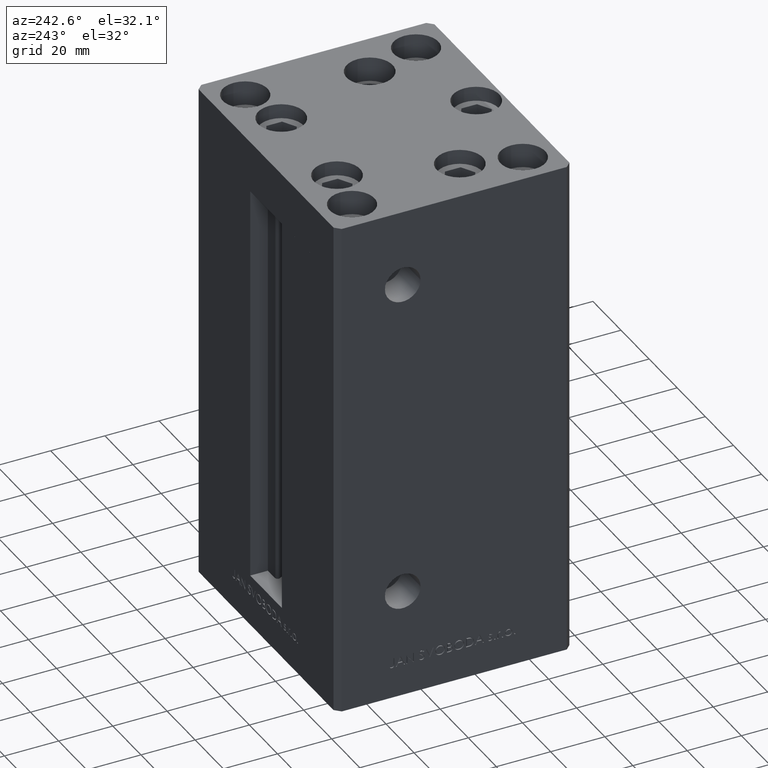
[diagram: clean part render]
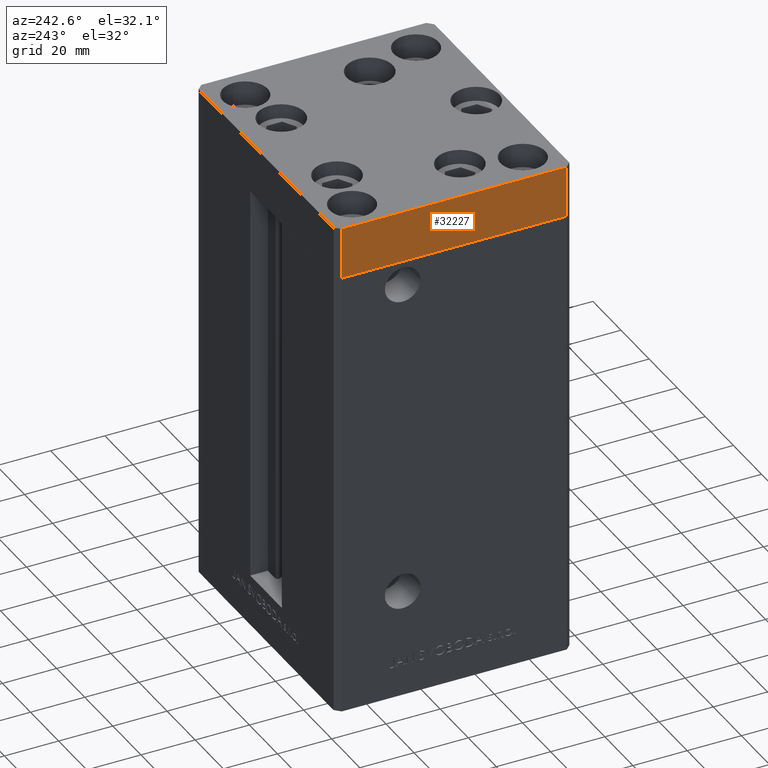
[diagram: same view with one face highlighted and labeled with its STEP entity id]
A machine part, auxiliary view. The second image highlights one B-rep face of the part: STEP entity #32227.
In plain terms, the highlighted planar face has unit normal (-1, -0, 0).
Its self-contained STEP definition (entity closure, byte-faithful):
#97 = VERTEX_POINT ( 'NONE', #42756 ) ;
#1258 = DIRECTION ( 'NONE',  ( 0.000000000000000000, 0.000000000000000000, 1.000000000000000000 ) ) ;
#3009 = CARTESIAN_POINT ( 'NONE',  ( -50.00000000000000711, 41.49999999999995026, -19.00000000000000000 ) ) ;
#3092 = LINE ( 'NONE', #18576, #12965 ) ;
#3302 = VERTEX_POINT ( 'NONE', #36755 ) ;
#4832 = CARTESIAN_POINT ( 'NONE',  ( -50.00000000000000000, -41.50000000000000000, -19.00000000000000000 ) ) ;
#5079 = LINE ( 'NONE', #4832, #25704 ) ;
#5566 = CARTESIAN_POINT ( 'NONE',  ( -50.00000000000000711, 41.49999999999995026, -19.00000000000000000 ) ) ;
#7393 = CARTESIAN_POINT ( 'NONE',  ( -50.00000000000000711, 41.49999999999995026, 0.000000000000000000 ) ) ;
#7905 = AXIS2_PLACEMENT_3D ( 'NONE', #10560, #29608, #37222 ) ;
#8414 = DIRECTION ( 'NONE',  ( 8.360113137237628665E-17, -1.000000000000000000, 0.000000000000000000 ) ) ;
#10560 = CARTESIAN_POINT ( 'NONE',  ( -50.00000000000000711, 41.49999999999995026, -19.00000000000000000 ) ) ;
#11043 = VERTEX_POINT ( 'NONE', #13958 ) ;
#12210 = LINE ( 'NONE', #7393, #24668 ) ;
#12965 = VECTOR ( 'NONE', #30247, 1000.000000000000000 ) ;
#13958 = CARTESIAN_POINT ( 'NONE',  ( -50.00000000000000000, -41.50000000000000000, -19.00000000000000000 ) ) ;
#14982 = EDGE_CURVE ( 'NONE', #3302, #97, #12210, .T. ) ;
#18497 = DIRECTION ( 'NONE',  ( 8.360113137237628665E-17, -1.000000000000000000, 0.000000000000000000 ) ) ;
#18576 = CARTESIAN_POINT ( 'NONE',  ( -50.00000000000000711, 41.49999999999995026, -19.00000000000000000 ) ) ;
#18986 = ORIENTED_EDGE ( 'NONE', *, *, #48514, .T. ) ;
#21188 = VECTOR ( 'NONE', #18497, 1000.000000000000000 ) ;
#22068 = LINE ( 'NONE', #3009, #21188 ) ;
#23401 = ORIENTED_EDGE ( 'NONE', *, *, #43056, .F. ) ;
#24668 = VECTOR ( 'NONE', #8414, 1000.000000000000000 ) ;
#25308 = FACE_OUTER_BOUND ( 'NONE', #30397, .T. ) ;
#25704 = VECTOR ( 'NONE', #1258, 1000.000000000000000 ) ;
#26587 = VERTEX_POINT ( 'NONE', #5566 ) ;
#27903 = ORIENTED_EDGE ( 'NONE', *, *, #46218, .T. ) ;
#29608 = DIRECTION ( 'NONE',  ( -1.000000000000000000, -8.360113137237628665E-17, 0.000000000000000000 ) ) ;
#30247 = DIRECTION ( 'NONE',  ( 0.000000000000000000, 0.000000000000000000, 1.000000000000000000 ) ) ;
#30397 = EDGE_LOOP ( 'NONE', ( #45764, #23401, #27903, #18986 ) ) ;
#32227 = ADVANCED_FACE ( 'NONE', ( #25308 ), #33166, .T. ) ;
#33166 = PLANE ( 'NONE',  #7905 ) ;
#36755 = CARTESIAN_POINT ( 'NONE',  ( -50.00000000000000711, 41.49999999999995026, 0.000000000000000000 ) ) ;
#37222 = DIRECTION ( 'NONE',  ( 8.360113137237628665E-17, -1.000000000000000000, 0.000000000000000000 ) ) ;
#42756 = CARTESIAN_POINT ( 'NONE',  ( -50.00000000000000000, -41.50000000000000000, 0.000000000000000000 ) ) ;
#43056 = EDGE_CURVE ( 'NONE', #26587, #3302, #3092, .T. ) ;
#45764 = ORIENTED_EDGE ( 'NONE', *, *, #14982, .F. ) ;
#46218 = EDGE_CURVE ( 'NONE', #26587, #11043, #22068, .T. ) ;
#48514 = EDGE_CURVE ( 'NONE', #11043, #97, #5079, .T. ) ;